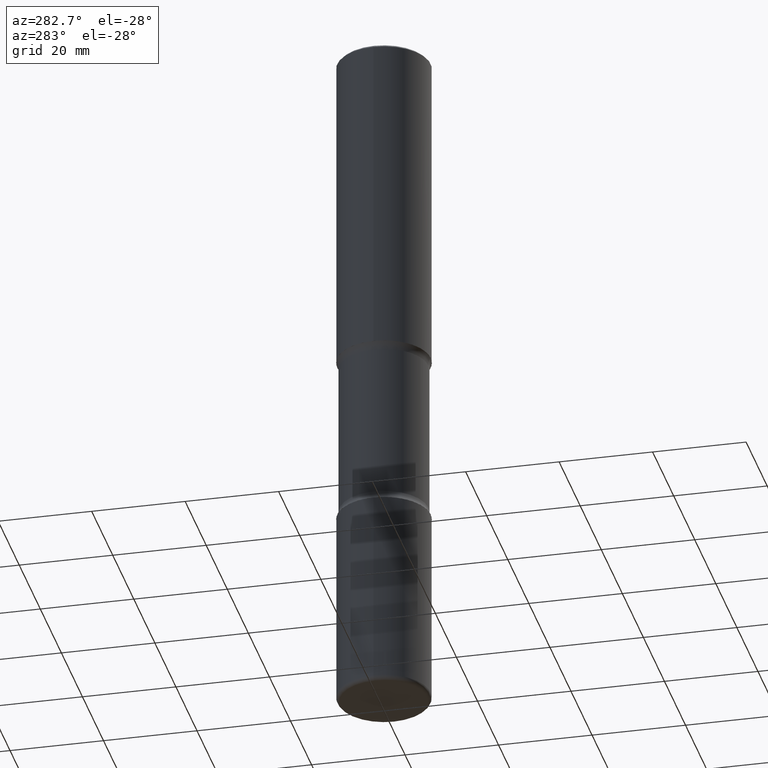
[diagram: clean part render]
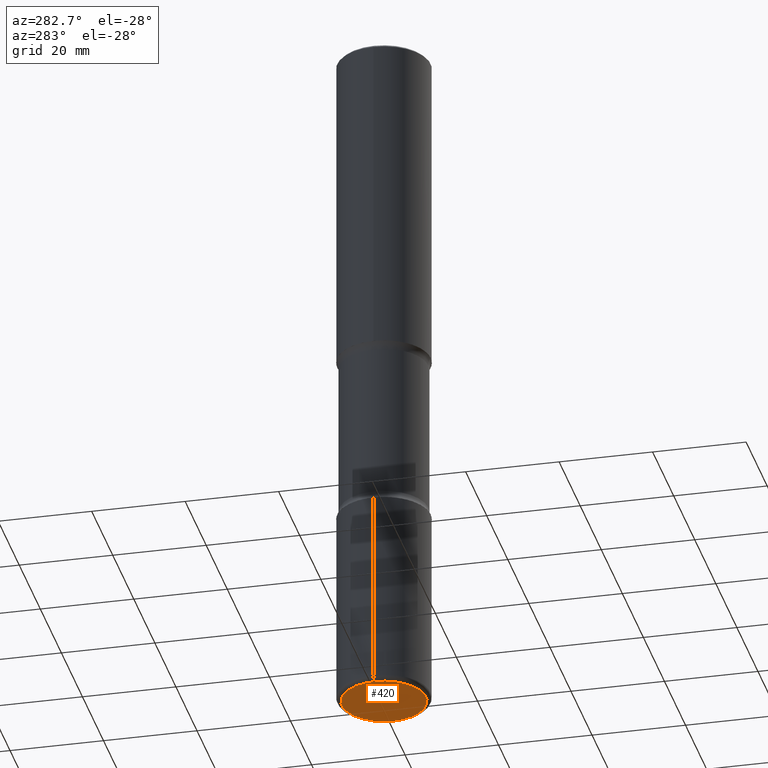
[diagram: same view with one face highlighted and labeled with its STEP entity id]
A machine part, auxiliary view. The second image highlights one B-rep face of the part: STEP entity #420.
In plain terms, the highlighted planar face has unit normal (0, -0, -1).
Its self-contained STEP definition (entity closure, byte-faithful):
#42 = CIRCLE ( 'NONE', #426, 0.3543000000000003924 ) ;
#46 = CARTESIAN_POINT ( 'NONE',  ( 0.3543000000000003924, -2.309300672324243991E-14, -5.905499999999999972 ) ) ;
#79 = CARTESIAN_POINT ( 'NONE',  ( 1.723044131305019458E-29, -3.883280511437256617E-14, -5.905499999999998195 ) ) ;
#95 = DIRECTION ( 'NONE',  ( 1.000000000000000000, -6.982962677686265133E-15, 0.000000000000000000 ) ) ;
#132 = DIRECTION ( 'NONE',  ( 1.000000000000000000, -6.982962677686265133E-15, 0.000000000000000000 ) ) ;
#143 = CARTESIAN_POINT ( 'NONE',  ( 1.444171603492632270E-28, -2.061894304653819197E-14, -5.905499999999999972 ) ) ;
#147 = VERTEX_POINT ( 'NONE', #402 ) ;
#174 = EDGE_CURVE ( 'NONE', #147, #298, #354, .T. ) ;
#191 = DIRECTION ( 'NONE',  ( 2.438088387897960049E-29, -3.491481338843145188E-15, -1.000000000000000000 ) ) ;
#288 = DIRECTION ( 'NONE',  ( -1.000000000000000000, 6.982962677686265922E-15, -4.876176775795935793E-29 ) ) ;
#298 = VERTEX_POINT ( 'NONE', #46 ) ;
#303 = ORIENTED_EDGE ( 'NONE', *, *, #174, .F. ) ;
#341 = ORIENTED_EDGE ( 'NONE', *, *, #411, .F. ) ;
#354 = CIRCLE ( 'NONE', #446, 0.3543000000000003924 ) ;
#383 = PLANE ( 'NONE',  #461 ) ;
#402 = CARTESIAN_POINT ( 'NONE',  ( -0.3543000000000003924, -1.789273103242020530E-14, -5.905499999999999972 ) ) ;
#404 = DIRECTION ( 'NONE',  ( -2.445468806185136597E-29, 3.491481338843145583E-15, 1.000000000000000000 ) ) ;
#411 = EDGE_CURVE ( 'NONE', #298, #147, #42, .T. ) ;
#420 = ADVANCED_FACE ( 'NONE', ( #422 ), #383, .T. ) ;
#422 = FACE_OUTER_BOUND ( 'NONE', #492, .T. ) ;
#426 = AXIS2_PLACEMENT_3D ( 'NONE', #143, #524, #95 ) ;
#446 = AXIS2_PLACEMENT_3D ( 'NONE', #450, #404, #132 ) ;
#450 = CARTESIAN_POINT ( 'NONE',  ( 1.444171603492632270E-28, -2.061894304653819197E-14, -5.905499999999999972 ) ) ;
#461 = AXIS2_PLACEMENT_3D ( 'NONE', #79, #191, #288 ) ;
#492 = EDGE_LOOP ( 'NONE', ( #341, #303 ) ) ;
#524 = DIRECTION ( 'NONE',  ( -2.445468806185136597E-29, 3.491481338843145583E-15, 1.000000000000000000 ) ) ;